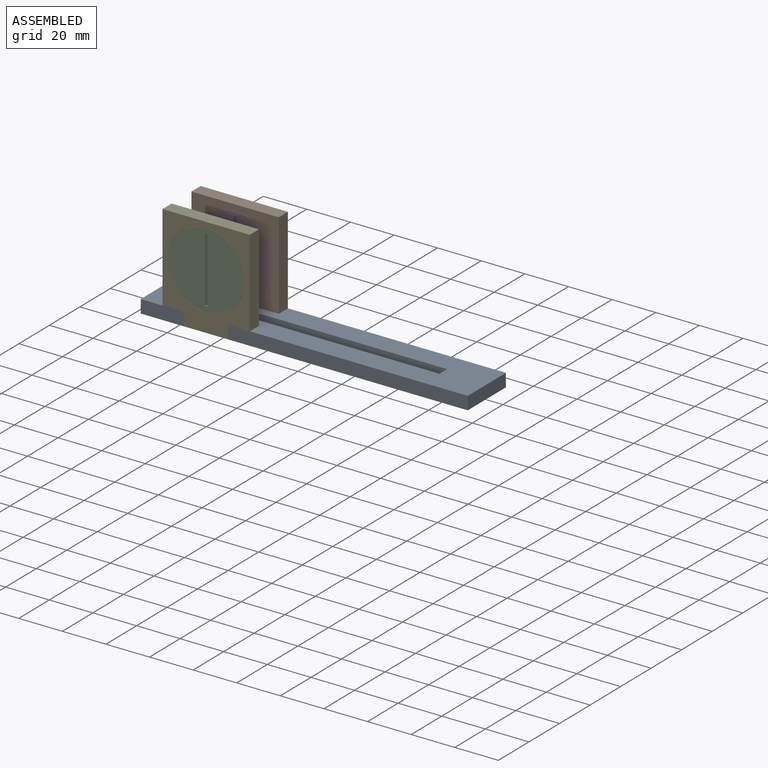
[diagram: assembled view]
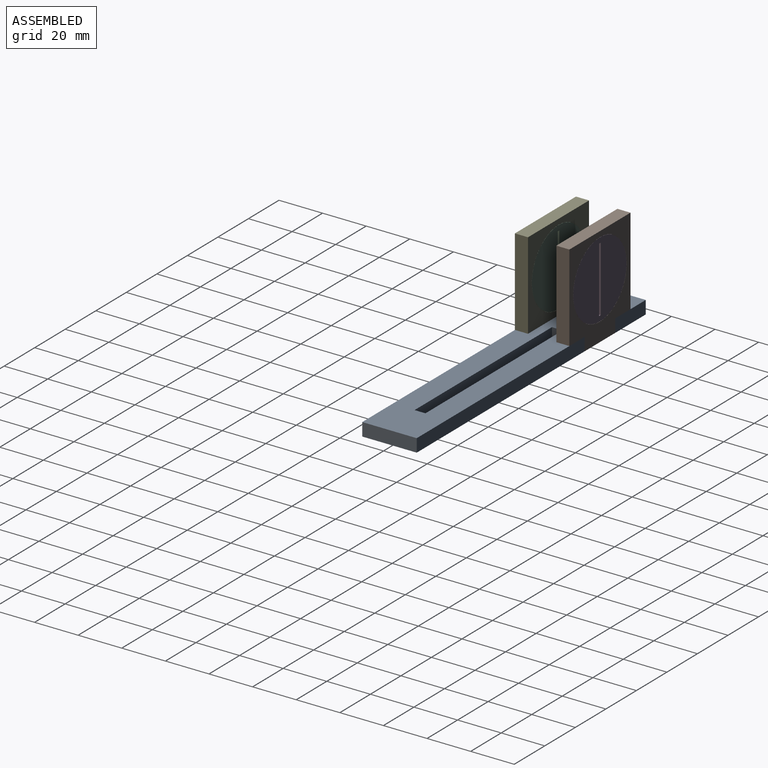
[diagram: assembled view, second angle]
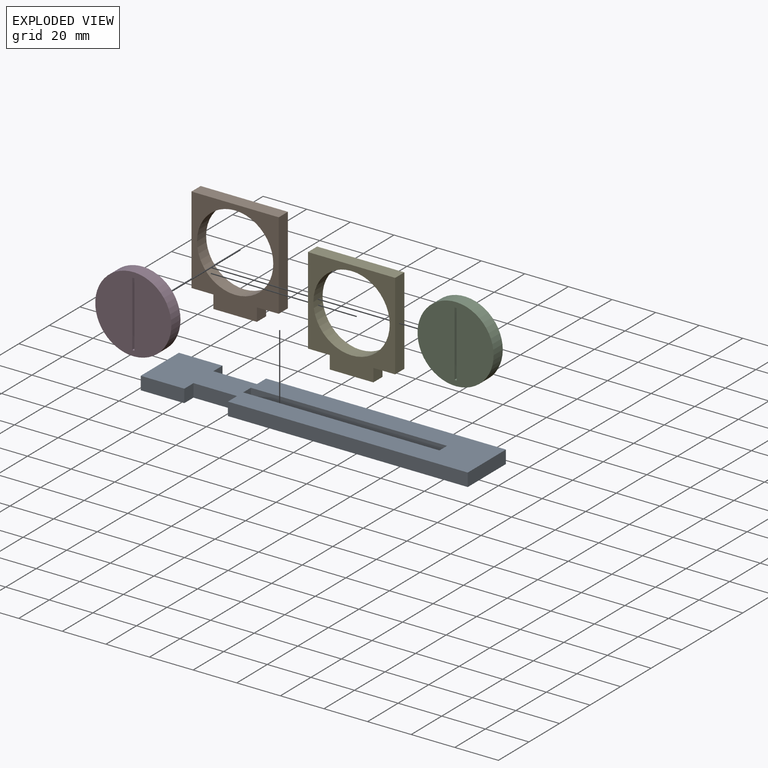
[diagram: exploded view]
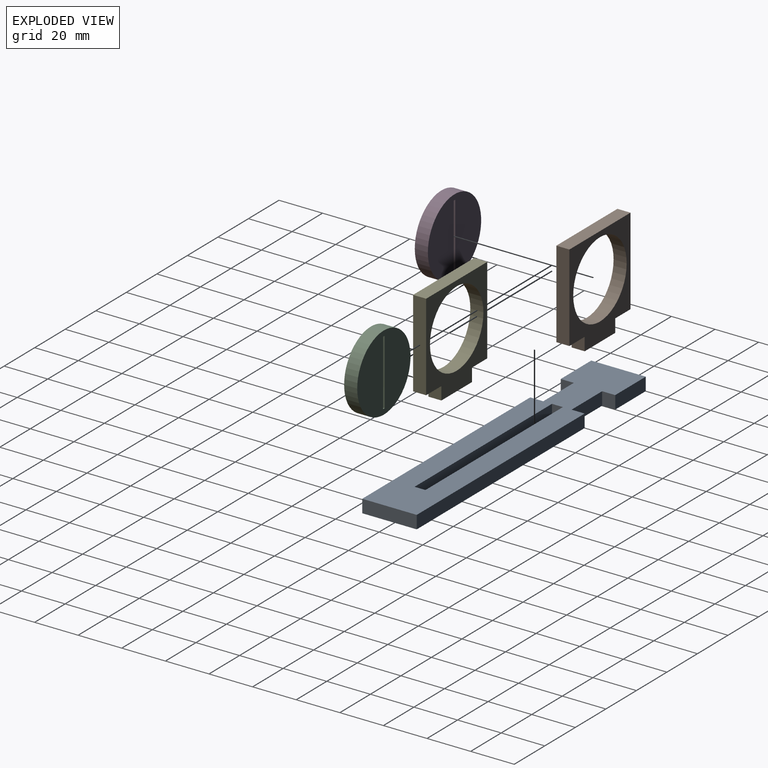
[diagram: exploded view, second angle]
ASSEMBLY  parts=5 mates=2
PART A: 18 faces, bbox 150x25x6 mm
  f0: plane 20x6mm, normal (0,1,0), area 120mm2, adj f2,f3,f6,f16
  f1: plane 20x6mm, normal (0,-1,0), area 120mm2, adj f2,f3,f6,f12
  f2: plane 150x25mm, normal (0,0,1), area 3060mm2, adj f0,f1,f4,f5,f6,f7,f8,f9
  f3: plane 150x25mm, normal (0,0,-1), area 3060mm2, adj f0,f1,f4,f5,f6,f7,f8,f9
  f4: plane 25x6mm, normal (1,0,0), area 150mm2, adj f2,f3,f5,f7
  f5: plane 110x6mm, normal (0,1,0), area 660mm2, adj f2,f3,f4,f15
  f6: plane 25x6mm, normal (-1,0,0), area 150mm2, adj f0,f1,f2,f3
  f7: plane 110x6mm, normal (0,-1,0), area 660mm2, adj f2,f3,f4,f13
  f8: plane 6x5mm, normal (-1,0,0), area 30mm2, adj f2,f3,f9,f11
  f9: plane 90x6mm, normal (0,-1,0), area 540mm2, adj f2,f3,f8,f10
  f10: plane 6x5mm, normal (1,0,0), area 30mm2, adj f2,f3,f9,f11
  f11: plane 90x6mm, normal (0,1,0), area 540mm2, adj f2,f3,f8,f10
  f12: plane 6x6mm, normal (1,0,0), area 36mm2, adj f1,f2,f3,f14
  f13: plane 6x6mm, normal (-1,0,0), area 36mm2, adj f2,f3,f7,f14
  f14: plane 20x6mm, normal (0,-1,0), area 120mm2, adj f2,f3,f12,f13
  f15: plane 6x6mm, normal (-1,0,0), area 36mm2, adj f2,f3,f5,f17
  f16: plane 6x6mm, normal (1,0,0), area 36mm2, adj f0,f2,f3,f17
  f17: plane 20x6mm, normal (0,1,0), area 120mm2, adj f2,f3,f15,f16
PART B: 11 faces, bbox 40x46x6 mm
  f0: plane 40x6mm, normal (-1,0,0), area 240mm2, adj f1,f8,f9,f10
  f1: plane 10x6mm, normal (0,-1,0), area 60mm2, adj f0,f2,f9,f10
  f2: plane 6x6mm, normal (-1,0,0), area 36mm2, adj f1,f3,f9,f10
  f3: plane 20x6mm, normal (0,-1,0), area 120mm2, adj f2,f4,f9,f10
  f4: plane 6x6mm, normal (1,0,0), area 36mm2, adj f3,f5,f9,f10
  f5: plane 10x6mm, normal (0,-1,0), area 60mm2, adj f4,f6,f9,f10
  f6: plane 40x6mm, normal (1,0,0), area 240mm2, adj f5,f8,f9,f10
  f7: cylinder r=17.5mm len=35mm, axis (0,0,-1), area 659.7mm2, adj f9,f10
  f8: plane 40x6mm, normal (0,1,0), area 240mm2, adj f0,f6,f9,f10
  f9: plane 46x40mm, normal (0,0,1), area 757.9mm2, adj f0,f1,f2,f3,f4,f5,f6,f7
  f10: plane 46x40mm, normal (0,0,-1), area 757.9mm2, adj f0,f1,f2,f3,f4,f5,f6,f7
PART C: 7 faces, bbox 34.9x34.9x6 mm
  f0: plane 6x1mm, normal (0,-1,0), area 6mm2, adj f1,f4,f5,f6
  f1: plane 30x6mm, normal (-1,0,0), area 180mm2, adj f0,f2,f5,f6
  f2: plane 6x1mm, normal (0,1,0), area 6mm2, adj f1,f4,f5,f6
  f3: cylinder r=17.45mm len=34.9mm, axis (0,0,1), area 657.8mm2, adj f5,f6
  f4: plane 30x6mm, normal (1,0,0), area 180mm2, adj f0,f2,f5,f6
  f5: plane 34.9x34.9mm, normal (0,0,-1), area 926.6mm2, adj f0,f1,f2,f3,f4
  f6: plane 34.9x34.9mm, normal (0,0,1), area 926.6mm2, adj f0,f1,f2,f3,f4
PART D: same geometry as C
PART E: same geometry as B
PLACE A t=(-16.25,-0.06,-1.26)mm
PLACE B rot(axis=(1,0,0),90deg) t=(-45.82,13.19,1.74)mm
PLACE C rot(axis=(1,0,0),90deg) t=(-45.82,-11.81,24.74)mm
PLACE D rot(axis=(-1,0,0),90deg) t=(-45.82,13.19,24.74)mm
PLACE E rot(axis=(1,0,0),90deg) t=(-45.82,-5.81,1.74)mm
MATE fastened D.f3 <-> B.f7  axis (0,1,0) through (-45.82,13.19,24.74)mm
MATE fastened B.f9 <-> A.f17  axis (0,-1,0) through (-45.82,7.19,-1.26)mm
